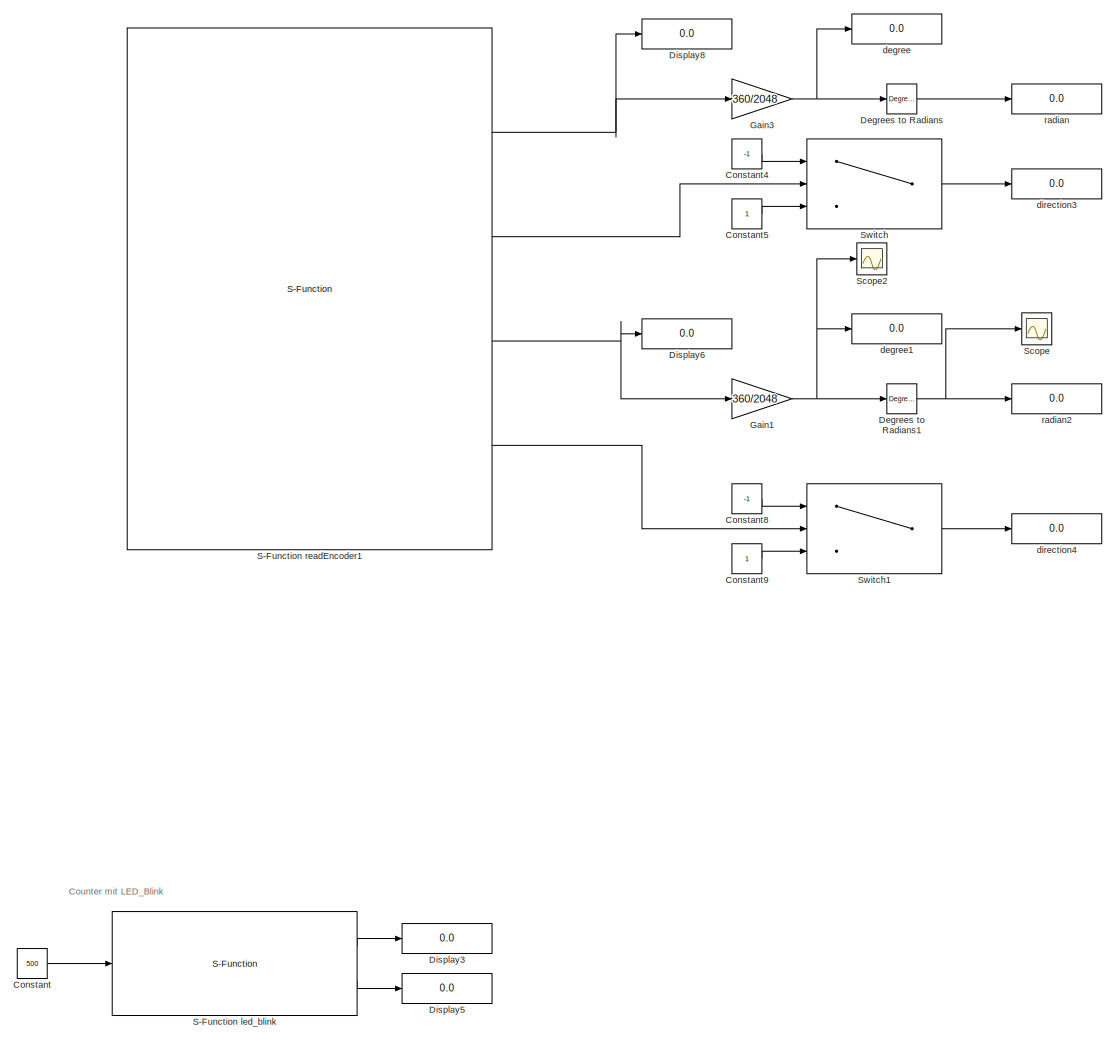
[diagram: root canvas - part 1/2, left side, full height]
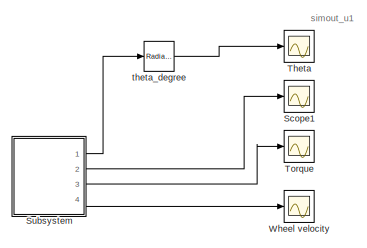
[diagram: root canvas - part 2/2, top right region]
MODEL slx_bc002a7c8017
KIND model
CONFIG AbsTol = auto
CONFIG EnableMultiTasking = on
CONFIG FixedStep = 0.01
CONFIG MaxStep = auto
CONFIG MinStep = auto
CONFIG RelTol = 1e-3
CONFIG SampleTimeConstraint = Unconstrained
CONFIG SolverName = FixedStepAuto
CONFIG StartTime = 0.0
CONFIG StopTime = inf
BLOCK [Constant] Constant
  Commented = on
  Value = 500
BLOCK [Constant] Constant4
  Value = -1
BLOCK [Constant] Constant5
BLOCK [Constant] Constant8
  Value = -1
BLOCK [Constant] Constant9
BLOCK [Reference] Degrees to Radians  REF=simulink_extras/Transformations/Degrees to
Radians
  Ports = [1, 1]
  SourceBlock = simulink_extras/Transformations/Degrees to\nRadians
  SourceProductBaseCode = SL
  SourceType = DegreesToRadians
BLOCK [Reference] Degrees to Radians1  REF=simulink_extras/Transformations/Degrees to
Radians
  Ports = [1, 1]
  SourceBlock = simulink_extras/Transformations/Degrees to\nRadians
  SourceProductBaseCode = SL
  SourceType = DegreesToRadians
BLOCK [Display] Display3
  Commented = on
  Decimation = 1
  Ports = [1]
BLOCK [Display] Display5
  Commented = on
  Decimation = 1
  Ports = [1]
BLOCK [Display] Display6
  Decimation = 1
  Ports = [1]
BLOCK [Display] Display8
  Decimation = 1
  Ports = [1]
BLOCK [Gain] Gain1
  Gain = 360/2048
BLOCK [Gain] Gain3
  Gain = 360/2048
BLOCK [S-Function] S-Function led_blink
  Commented = on
  CopyFcn = set_param(gcbh,'LinkStatus','none')
  EnableBusSupport = off
  FunctionName = led_blink
  OpenFcn = sfunctionwizard(gcbh)
  Ports = [1, 2]
  SFcnIsStateOwnerBlock = off
  SFunctionDeploymentMode = off
  SFunctionModules = led_blink_wrapper
BLOCK [S-Function] S-Function readEncoder1
  CopyFcn = set_param(gcbh,'LinkStatus','none')
  EnableBusSupport = off
  FunctionName = readEnc1
  OpenFcn = sfunctionwizard(gcbh)
  Ports = [0, 4]
  SFcnIsStateOwnerBlock = off
  SFunctionDeploymentMode = off
  SFunctionModules = readEnc1_wrapper
BLOCK [Scope] Scope
  Floating = off
  NumInputPorts = 1
  Ports = [1]
  ScopeSpecificationString = Simulink.scopes.TimeScopeBlockCfg('CurrentConfiguration', extmgr.ConfigurationSet(extmgr.Configuration('Core','General UI',true),extmgr.Configuration('Core','Source UI',true),extmgr.Configuration('Sources','WiredSimulink',true,'DataLoggingVariableName','Encwerte_rad','DataLogging',true,'DataLoggingSaveFormat','StructureWithTime'),extmgr.Configuration('Visuals','Time Domain',true,'SerializedDisplay...<+1523ch>
BLOCK [Scope] Scope1
  Commented = on
  Floating = off
  NumInputPorts = 1
  Ports = [1]
  ScopeSpecificationString = Simulink.scopes.TimeScopeBlockCfg('CurrentConfiguration', extmgr.ConfigurationSet(extmgr.Configuration('Core','General UI',true),extmgr.Configuration('Core','Source UI',true),extmgr.Configuration('Sources','WiredSimulink',true,'DataLoggingVariableName','ScopeData1'),extmgr.Configuration('Visuals','Time Domain',true,'SerializedDisplays',{struct('MinYLimReal','-0.18412','MaxYLimReal','0.16929','YLab...<+1396ch>
BLOCK [Scope] Scope2
  Floating = off
  NumInputPorts = 1
  Ports = [1]
  ScopeSpecificationString = Simulink.scopes.TimeScopeBlockCfg('CurrentConfiguration', extmgr.ConfigurationSet(extmgr.Configuration('Core','General UI',true),extmgr.Configuration('Core','Source UI',true),extmgr.Configuration('Sources','WiredSimulink',true,'DataLoggingVariableName','Encwerte_deg','DataLogging',true,'DataLoggingSaveFormat','StructureWithTime'),extmgr.Configuration('Visuals','Time Domain',true,'SerializedDisplay...<+1483ch>
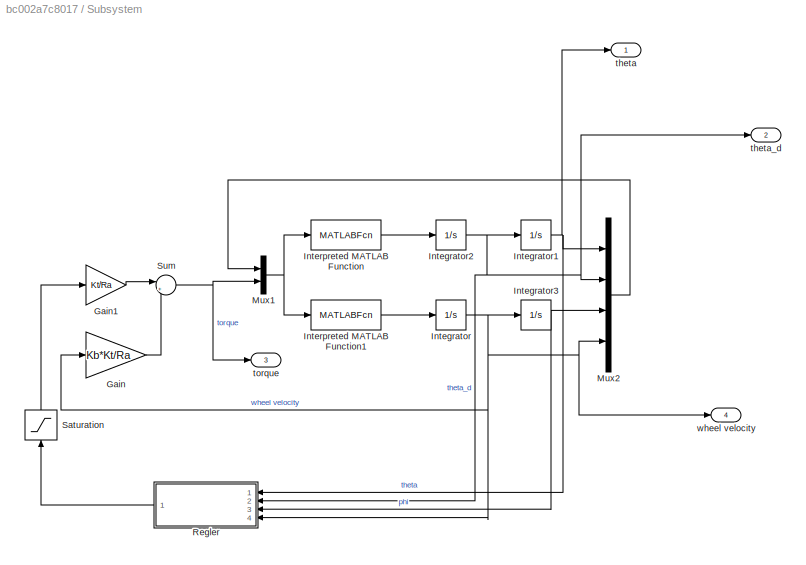
BLOCK [SubSystem] Subsystem
  Commented = on
  Ports = [0, 4]
  RequestExecContextInheritance = off
BLOCK [Gain] Subsystem/Gain
  Gain = Kb*Kt/Ra
BLOCK [Gain] Subsystem/Gain1
  Gain = Kt/Ra
BLOCK [Integrator] Subsystem/Integrator
  Ports = [1, 1]
BLOCK [Integrator] Subsystem/Integrator1
  InitialCondition = theta_0
  Ports = [1, 1]
BLOCK [Integrator] Subsystem/Integrator2
  Ports = [1, 1]
BLOCK [Integrator] Subsystem/Integrator3
  Ports = [1, 1]
BLOCK [MATLABFcn] Subsystem/Interpreted MATLAB Function
  MATLABFcn = (b*g*sin(u(1))-c1*u(2)+c2*u(4)-u(5))/(a-J2)
  NameLocation = top
  Output1D = off
  Ports = [1, 1]
BLOCK [MATLABFcn] Subsystem/Interpreted MATLAB Function1
  MATLABFcn = (a*u(5)/J2+c1*u(2)-b*g*sin(u(1))-a*c2*u(4)/J2)/(a-J2)
  NameLocation = top
  Output1D = off
  Ports = [1, 1]
BLOCK [Mux] Subsystem/Mux1
  DisplayOption = bar
  Inputs = 2
  Ports = [2, 1]
BLOCK [Mux] Subsystem/Mux2
  DisplayOption = bar
  Ports = [4, 1]
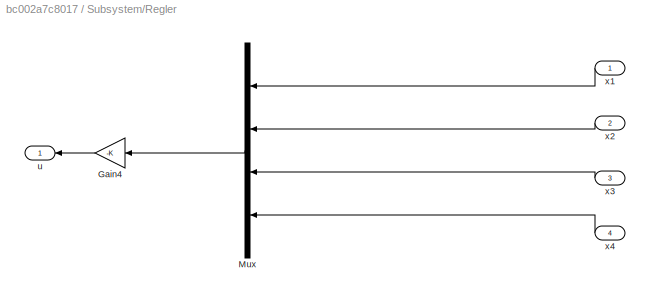
BLOCK [SubSystem] Subsystem/Regler
  NameLocation = top
  Ports = [4, 1]
  RequestExecContextInheritance = off
BLOCK [Gain] Subsystem/Regler/Gain4
  Gain = -K
  Multiplication = Matrix(K*u)
  NameLocation = top
BLOCK [Mux] Subsystem/Regler/Mux
  DisplayOption = bar
  Ports = [4, 1]
BLOCK [Outport] Subsystem/Regler/u
  NameLocation = top
BLOCK [Inport] Subsystem/Regler/x1
  NameLocation = top
BLOCK [Inport] Subsystem/Regler/x2
  NameLocation = top
  Port = 2
BLOCK [Inport] Subsystem/Regler/x3
  NameLocation = top
  Port = 3
BLOCK [Inport] Subsystem/Regler/x4
  NameLocation = top
  Port = 4
BLOCK [Saturate] Subsystem/Saturation
  LowerLimit = -30
  NameLocation = right
  UpperLimit = 30
BLOCK [Sum] Subsystem/Sum
  Inputs = |+-
  Ports = [2, 1]
BLOCK [Outport] Subsystem/theta
BLOCK [Outport] Subsystem/theta_d
  Port = 2
BLOCK [Outport] Subsystem/torque
  Port = 3
BLOCK [Outport] Subsystem/wheel velocity
  Port = 4
BLOCK [Switch] Switch
  Criteria = u2 > Threshold
  InputSameDT = off
  SaturateOnIntegerOverflow = off
BLOCK [Switch] Switch1
  Criteria = u2 > Threshold
  InputSameDT = off
  SaturateOnIntegerOverflow = off
BLOCK [Scope] Theta
  Commented = on
  Floating = off
  NumInputPorts = 1
  Ports = [1]
  ScopeSpecificationString = Simulink.scopes.TimeScopeBlockCfg('CurrentConfiguration', extmgr.ConfigurationSet(extmgr.Configuration('Core','General UI',true),extmgr.Configuration('Core','Source UI',true),extmgr.Configuration('Sources','WiredSimulink',true,'DataLoggingVariableName','ScopeData2','DataLogging',true,'DataLoggingSaveFormat','StructureWithTime'),extmgr.Configuration('Visuals','Time Domain',true,'SerializedDisplays'...<+1515ch>
BLOCK [Scope] Torque
  Commented = on
  Floating = off
  NumInputPorts = 1
  Ports = [1]
  ScopeSpecificationString = Simulink.scopes.TimeScopeBlockCfg('CurrentConfiguration', extmgr.ConfigurationSet(extmgr.Configuration('Core','General UI',true),extmgr.Configuration('Core','Source UI',true),extmgr.Configuration('Sources','WiredSimulink',true,'DataLoggingVariableName','ScopeData3'),extmgr.Configuration('Visuals','Time Domain',true,'SerializedDisplays',{struct('MinYLimReal','-2.13834','MaxYLimReal','0.21545','YLab...<+1427ch>
BLOCK [Scope] Wheel velocity
  Commented = on
  Floating = off
  NumInputPorts = 1
  Ports = [1]
  ScopeSpecificationString = Simulink.scopes.TimeScopeBlockCfg('CurrentConfiguration', extmgr.ConfigurationSet(extmgr.Configuration('Core','General UI',true),extmgr.Configuration('Core','Source UI',true),extmgr.Configuration('Sources','WiredSimulink',true,'DataLogging',true,'DataLoggingSaveFormat','StructureWithTime'),extmgr.Configuration('Visuals','Time Domain',true,'SerializedDisplays',{struct('MinYLimReal','-338.36492','Ma...<+1449ch>
BLOCK [Display] degree
  Decimation = 1
  Ports = [1]
BLOCK [Display] degree1
  Decimation = 1
  Ports = [1]
BLOCK [Display] direction3
  Decimation = 1
  Ports = [1]
BLOCK [Display] direction4
  Decimation = 1
  Ports = [1]
BLOCK [Display] radian
  Decimation = 1
  Ports = [1]
BLOCK [Display] radian2
  Decimation = 1
  Ports = [1]
BLOCK [Reference] theta_degree  REF=simulink_extras/Transformations/Radians
to Degrees
  Commented = on
  Ports = [1, 1]
  SourceBlock = simulink_extras/Transformations/Radians\nto Degrees
  SourceProductBaseCode = SL
  SourceType = RadiansToDegrees
ANNOTATION (root): simout_u1
ANNOTATION (root): Counter mit LED_Blink
LINE Constant4:1 -> Switch:1
LINE Constant5:1 -> Switch:3
LINE Constant8:1 -> Switch1:1
LINE Constant9:1 -> Switch1:3
LINE Constant:1 -> S-Function led_blink:1
NET Degrees to Radians1:1 -> Scope:1, radian2:1
LINE Degrees to Radians:1 -> radian:1
NET Gain1:1 -> Degrees to Radians1:1, Scope2:1, degree1:1
NET Gain3:1 -> Degrees to Radians:1, degree:1
LINE S-Function led_blink:1 -> Display3:1
LINE S-Function led_blink:2 -> Display5:1
NET S-Function readEncoder1:1 -> Display8:1, Gain3:1
LINE S-Function readEncoder1:2 -> Switch:2
NET S-Function readEncoder1:3 -> Display6:1, Gain1:1
LINE S-Function readEncoder1:4 -> Switch1:2
LINE Subsystem/Gain1:1 -> Subsystem/Sum:1
LINE Subsystem/Gain:1 -> Subsystem/Sum:2
NET Subsystem/Integrator1:1 -> Subsystem/Mux2:1, Subsystem/Regler:1, Subsystem/theta:1
NET Subsystem/Integrator2:1 -> Subsystem/Integrator1:1, Subsystem/Mux2:2, Subsystem/Regler:2, Subsystem/theta_d:1
NET Subsystem/Integrator3:1 -> Subsystem/Mux2:3, Subsystem/Regler:3
NET Subsystem/Integrator:1 -> Subsystem/Gain:1, Subsystem/Integrator3:1, Subsystem/Mux2:4, Subsystem/Regler:4, Subsystem/wheel velocity:1
LINE Subsystem/Interpreted MATLAB Function1:1 -> Subsystem/Integrator:1
LINE Subsystem/Interpreted MATLAB Function:1 -> Subsystem/Integrator2:1
NET Subsystem/Mux1:1 -> Subsystem/Interpreted MATLAB Function1:1, Subsystem/Interpreted MATLAB Function:1
LINE Subsystem/Mux2:1 -> Subsystem/Mux1:1
LINE Subsystem/Regler/Gain4:1 -> Subsystem/Regler/u:1
LINE Subsystem/Regler/Mux:1 -> Subsystem/Regler/Gain4:1
LINE Subsystem/Regler/x1:1 -> Subsystem/Regler/Mux:1
LINE Subsystem/Regler/x2:1 -> Subsystem/Regler/Mux:2
LINE Subsystem/Regler/x3:1 -> Subsystem/Regler/Mux:3
LINE Subsystem/Regler/x4:1 -> Subsystem/Regler/Mux:4
LINE Subsystem/Regler:1 -> Subsystem/Saturation:1
LINE Subsystem/Saturation:1 -> Subsystem/Gain1:1
NET Subsystem/Sum:1 -> Subsystem/Mux1:2, Subsystem/torque:1
LINE Subsystem:1 -> theta_degree:1
LINE Subsystem:2 -> Scope1:1
LINE Subsystem:3 -> Torque:1
LINE Subsystem:4 -> Wheel velocity:1
LINE Switch1:1 -> direction4:1
LINE Switch:1 -> direction3:1
LINE theta_degree:1 -> Theta:1
note: NET lines group one-source signal fan-out (src -> all destinations, sorted); 1:1 wires keep LINE
